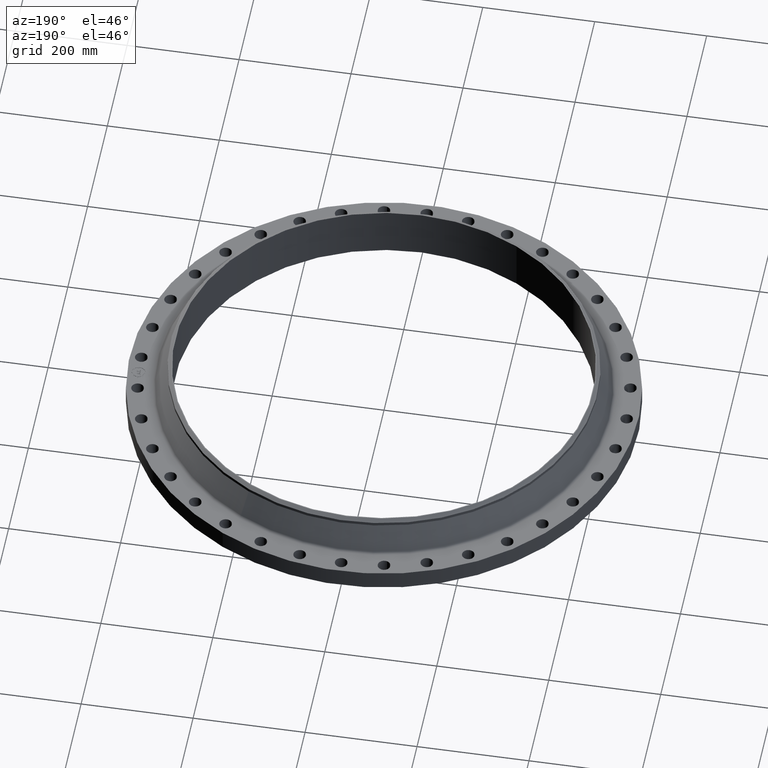
[diagram: clean part render]
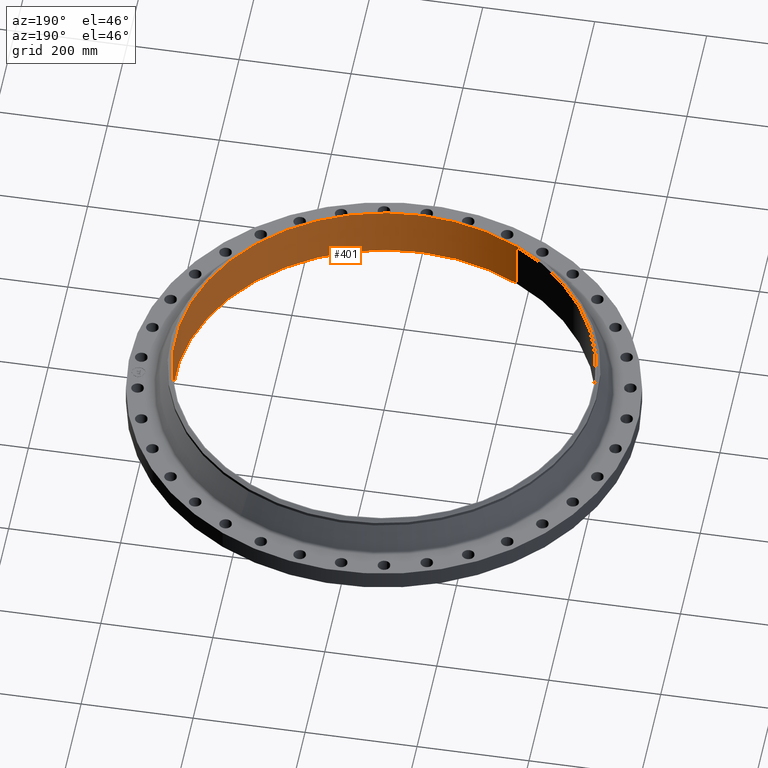
[diagram: same view with one face highlighted and labeled with its STEP entity id]
A machine part, auxiliary view. The second image highlights one B-rep face of the part: STEP entity #401.
In plain terms, the highlighted cylindrical surface (partial cylindrical patch) has radius 373.075 mm, axis along (0, 0, -1).
Its self-contained STEP definition (entity closure, byte-faithful):
#363=AXIS2_PLACEMENT_3D('Circle Axis2P3D',#361,#362,$) ;
#374=AXIS2_PLACEMENT_3D('Cylinder Axis2P3D',#371,#372,#373) ;
#385=AXIS2_PLACEMENT_3D('Circle Axis2P3D',#383,#384,$) ;
#356=CARTESIAN_POINT('Vertex',(-7.04180231105,-12.8899326691,3.63000000001)) ;
#358=CARTESIAN_POINT('Vertex',(7.04180231105,12.8899326691,3.63000000001)) ;
#361=CARTESIAN_POINT('Axis2P3D Location',(1.1189649382E-015,1.1189649382E-015,3.63000000001)) ;
#371=CARTESIAN_POINT('Axis2P3D Location',(0.,0.,1.83375000001)) ;
#376=CARTESIAN_POINT('Line Origine',(7.04180231105,12.8899326691,1.78375000001)) ;
#380=CARTESIAN_POINT('Vertex',(7.04180231105,12.8899326691,-0.0625000000003)) ;
#383=CARTESIAN_POINT('Axis2P3D Location',(0.,0.,-0.0625000000003)) ;
#387=CARTESIAN_POINT('Vertex',(-7.04180231105,-12.8899326691,-0.0625000000003)) ;
#390=CARTESIAN_POINT('Line Origine',(-7.04180231105,-12.8899326691,1.78375000001)) ;
#362=DIRECTION('Axis2P3D Direction',(0.,-0.,-0.0393700787402)) ;
#372=DIRECTION('Axis2P3D Direction',(0.,0.,-0.0393700787402)) ;
#373=DIRECTION('Axis2P3D XDirection',(-0.0188750212049,-0.0345504945626,0.)) ;
#377=DIRECTION('Vector Direction',(0.,0.,-0.0393700787402)) ;
#384=DIRECTION('Axis2P3D Direction',(0.,0.,-0.0393700787402)) ;
#391=DIRECTION('Vector Direction',(0.,0.,-0.0393700787402)) ;
#378=VECTOR('Line Direction',#377,0.0393700787402) ;
#392=VECTOR('Line Direction',#391,0.0393700787402) ;
#396=ORIENTED_EDGE('',*,*,#382,.T.) ;
#397=ORIENTED_EDGE('',*,*,#389,.T.) ;
#398=ORIENTED_EDGE('',*,*,#394,.F.) ;
#399=ORIENTED_EDGE('',*,*,#365,.F.) ;
#401=ADVANCED_FACE('PartBody',(#400),#375,.F.) ;
#364=CIRCLE('generated circle',#363,14.6880000001) ;
#386=CIRCLE('generated circle',#385,14.6880000001) ;
#375=CYLINDRICAL_SURFACE('generated cylinder',#374,14.6880000001) ;
#365=EDGE_CURVE('',#359,#357,#364,.T.) ;
#382=EDGE_CURVE('',#359,#381,#379,.T.) ;
#389=EDGE_CURVE('',#381,#388,#386,.T.) ;
#394=EDGE_CURVE('',#357,#388,#393,.T.) ;
#395=EDGE_LOOP('',(#396,#397,#398,#399)) ;
#400=FACE_OUTER_BOUND('',#395,.T.) ;
#379=LINE('Line',#376,#378) ;
#393=LINE('Line',#390,#392) ;
#357=VERTEX_POINT('',#356) ;
#359=VERTEX_POINT('',#358) ;
#381=VERTEX_POINT('',#380) ;
#388=VERTEX_POINT('',#387) ;